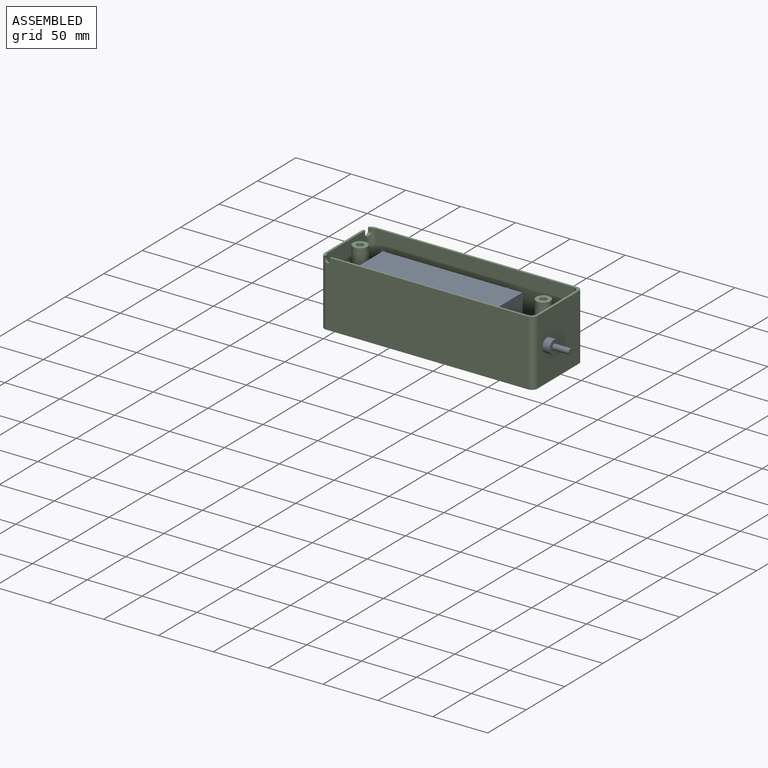
[diagram: assembled view]
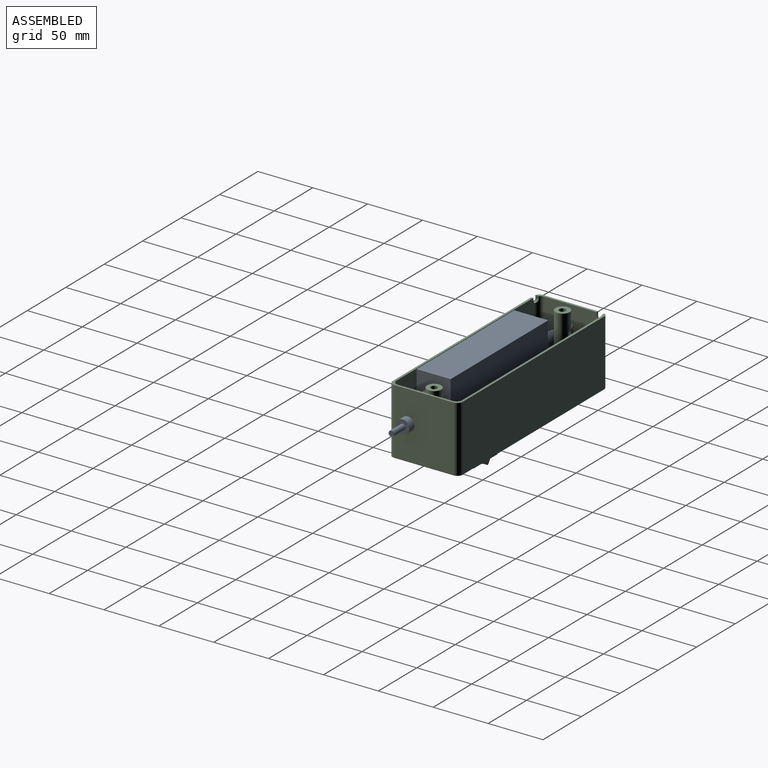
[diagram: assembled view, second angle]
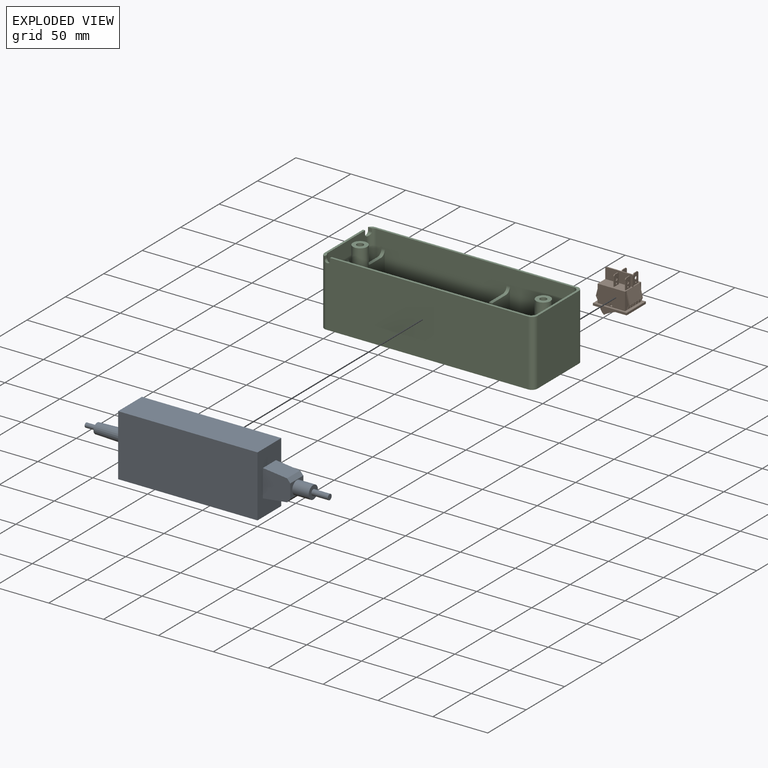
[diagram: exploded view]
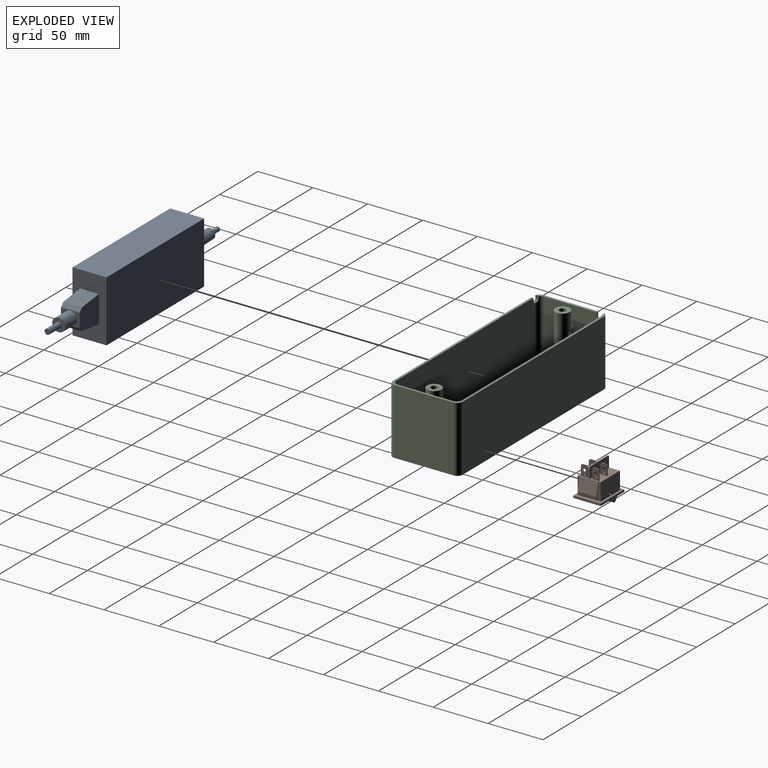
[diagram: exploded view, second angle]
ASSEMBLY  parts=3 mates=2
PART A: 21 faces, bbox 222x56x31 mm
  f0: plane 56x31mm, normal (-1,0,0), area 1311mm2, adj f1,f3,f4,f5,f6,f7,f9,f10
  f1: plane 127x31mm, normal (0,-1,0), area 3937mm2, adj f0,f2,f4,f5
  f2: plane 56x31mm, normal (1,0,0), area 1633.9mm2, adj f1,f3,f4,f5,f18
  f3: plane 127x31mm, normal (0,1,0), area 3937mm2, adj f0,f2,f4,f5
  f4: plane 127x56mm, normal (0,0,1), area 7112mm2, adj f0,f1,f2,f3
  f5: plane 127x56mm, normal (0,0,-1), area 7112mm2, adj f0,f1,f2,f3
  f6: plane 25x25mm, normal (0,0,1), area 541.1mm2, adj f0,f8,f9,f10,f11,f12
  f7: plane 25x25mm, normal (0,0,-1), area 541.1mm2, adj f0,f8,f9,f10,f11,f12
  f8: plane 17x13mm, normal (-1,0,0), area 107.9mm2, adj f6,f7,f11,f12,f13
  f9: plane 22.02x17mm, normal (-0.12,-0.99,0), area 377mm2, adj f0,f6,f7,f11
  f10: plane 22.02x17mm, normal (-0.12,0.99,0), area 377mm2, adj f0,f6,f7,f12
  f11: plane 17x3.36mm, normal (-0.75,-0.66,0), area 76.3mm2, adj f6,f7,f8,f9
  f12: plane 17x3.36mm, normal (-0.75,0.66,0), area 76.3mm2, adj f6,f7,f8,f10
  f13: cylinder r=6mm len=15mm, axis (1,0,0), area 565.5mm2, adj f8,f14
  f14: plane 12x12mm, normal (-1,0,0), area 93.5mm2, adj f13,f15
  f15: cylinder r=2.5mm len=15mm, axis (1,0,0), area 235.6mm2, adj f14,f16
  f16: plane 5x5mm, normal (-1,0,0), area 19.6mm2, adj f15
  f17: plane 9.4x9.4mm, normal (1,0,0), area 56.8mm2, adj f18,f19
  f18: cone r=4.7mm half-angle=1.9deg, axis (-1,0,0), area 980.7mm2, adj f2,f17
  f19: cylinder r=2mm len=10mm, axis (-1,0,0), area 125.7mm2, adj f17,f20
  f20: plane 4x4mm, normal (1,0,0), area 12.6mm2, adj f19
PART B: 252 faces, bbox 25x35x31 mm
  f0: plane 25x16mm, normal (1,0,0), area 390.9mm2, adj f20,f22,f23,f25,f94,f157,f158,f159
  f1: plane 15.05x3mm, normal (-1,0,0), area 13.3mm2, adj f3,f4,f5,f6,f7,f8,f9,f10
  f2: plane 15.05x3mm, normal (1,0,0), area 13.3mm2, adj f3,f4,f5,f6,f7,f8,f9,f10
  f3: plane 17x0.18mm, normal (0,0.43,-0.9), area 3.4mm2, adj f1,f2,f153,f154
  f4: plane 17x0.18mm, normal (0,0.43,-0.9), area 3.4mm2, adj f1,f2,f55,f156
  f5: plane 17x0.18mm, normal (0,0.43,-0.9), area 3.4mm2, adj f1,f2,f150,f151
  f6: plane 17x0.18mm, normal (0,0.43,-0.9), area 3.4mm2, adj f1,f2,f147,f148
  f7: plane 17x0.18mm, normal (0,0.43,-0.9), area 3.4mm2, adj f1,f2,f144,f145
  f8: plane 17x0.18mm, normal (0,0.43,-0.9), area 3.4mm2, adj f1,f2,f141,f142
  f9: plane 17x0.18mm, normal (0,0.43,-0.9), area 3.4mm2, adj f1,f2,f138,f139
  f10: plane 17x0.18mm, normal (0,0.43,-0.9), area 3.4mm2, adj f1,f2,f135,f136
  f11: plane 17x0.81mm, normal (0,0.9,0.43), area 15.3mm2, adj f1,f2,f54,f134
  f12: plane 17x0.18mm, normal (0,0.43,0.9), area 3.4mm2, adj f46,f47,f51,f131
  f13: plane 17x0.18mm, normal (0,0.43,0.9), area 3.4mm2, adj f46,f47,f128,f133
  f14: plane 17x0.18mm, normal (0,0.43,0.9), area 3.4mm2, adj f46,f47,f125,f130
  f15: plane 17x0.18mm, normal (0,0.43,0.9), area 3.4mm2, adj f46,f47,f122,f127
  f16: plane 17x0.18mm, normal (0,0.43,0.9), area 3.4mm2, adj f46,f47,f119,f124
  f17: plane 17x0.18mm, normal (0,0.43,0.9), area 3.4mm2, adj f46,f47,f116,f121
  f18: plane 17x0.18mm, normal (0,0.43,0.9), area 3.4mm2, adj f46,f47,f114,f118
  f19: cylinder r=44.05mm len=19.7mm, axis (-1,0,0), area 364.6mm2, adj f42,f43,f44,f45,f97,f98,f99,f100
  f20: plane 25x10mm, normal (0,-1,0), area 241.2mm2, adj f0,f22,f25,f34,f51,f55,f61,f62
  f21: plane 25x10mm, normal (0,-1,0), area 241.2mm2, adj f22,f25,f31,f33,f51,f55,f56,f57
  f22: plane 21x16mm, normal (0,0,-1), area 268.8mm2, adj f0,f1,f2,f20,f21,f23,f31,f53
  f23: plane 30.7x25mm, normal (0,-1,0), area 242.5mm2, adj f0,f22,f25,f27,f28,f29,f30,f31
  f24: plane 9x1mm, normal (0,0,1), area 9mm2, adj f33,f34,f51,f250
  f25: plane 21x16mm, normal (0,0,1), area 268.8mm2, adj f0,f20,f21,f23,f31,f46,f47,f50
  f26: plane 30.7x25mm, normal (0,1,0), area 298.2mm2, adj f27,f28,f29,f30,f36,f37,f38,f39
  f27: plane 30.7x2mm, normal (-1,0,0), area 61.4mm2, adj f23,f26,f28,f30
  f28: plane 25x2mm, normal (0,0,1), area 50mm2, adj f23,f26,f27,f29
  f29: plane 30.7x2mm, normal (1,0,0), area 61.4mm2, adj f23,f26,f28,f30
  f30: plane 25x2mm, normal (0,0,-1), area 50mm2, adj f23,f26,f27,f29
  f31: plane 25x16mm, normal (-1,0,0), area 396.9mm2, adj f21,f22,f23,f25,f92
  f32: plane 9x1mm, normal (0,0,-1), area 9mm2, adj f33,f34,f55,f251
  f33: plane 25x10mm, normal (-1,0,0), area 249.6mm2, adj f21,f24,f32,f35,f250,f251
  f34: plane 25x10mm, normal (1,0,0), area 249.6mm2, adj f20,f24,f32,f35,f250,f251
  f35: plane 23x1mm, normal (0,-1,0), area 23mm2, adj f33,f34,f250,f251
  f36: plane 24.7x0.5mm, normal (1,0,0), area 12.3mm2, adj f26,f37,f39,f40
  f37: plane 19x0.5mm, normal (0,0,1), area 9.5mm2, adj f26,f36,f38,f40
  f38: plane 24.7x0.5mm, normal (-1,0,0), area 12.3mm2, adj f26,f37,f39,f40
  f39: plane 19x0.5mm, normal (0,0,-1), area 9.5mm2, adj f26,f36,f38,f40
  f40: plane 24.7x19mm, normal (0,1,0), area 42.7mm2, adj f36,f37,f38,f39,f41,f42,f44,f45
  f41: plane 18x0.5mm, normal (0,0,-1), area 9mm2, adj f40,f43,f44,f45
  f42: plane 18x0.5mm, normal (0,0,1), area 9mm2, adj f19,f40,f44,f45
  f43: cylinder r=11.03mm len=18mm, axis (-1,0,0), area 148.6mm2, adj f19,f41,f44,f45
  f44: plane 23.7x7.5mm, normal (1,0,0), area 81.3mm2, adj f19,f40,f41,f42,f43
  f45: plane 23.7x7.5mm, normal (-1,0,0), area 81.3mm2, adj f19,f40,f41,f42,f43
  f46: plane 15.05x3mm, normal (-1,0,0), area 13.3mm2, adj f12,f13,f14,f15,f16,f17,f18,f25
  f47: plane 15.05x3mm, normal (1,0,0), area 13.3mm2, adj f12,f13,f14,f15,f16,f17,f18,f25
  f48: plane 17x0.81mm, normal (0,0.9,-0.43), area 15.3mm2, adj f46,f47,f49,f111
  f49: plane 17x3.29mm, normal (0,-0.43,-0.9), area 61.8mm2, adj f46,f47,f48,f50
  f50: plane 17x7.42mm, normal (0,0.25,-0.97), area 130.5mm2, adj f25,f46,f47,f49
  f51: plane 17x11.48mm, normal (0,-0.25,0.97), area 201.7mm2, adj f12,f20,f21,f24,f46,f47
  f52: plane 17x0.18mm, normal (0,0.43,0.9), area 3.4mm2, adj f46,f47,f112,f115
  f53: plane 17x7.42mm, normal (0,0.25,0.97), area 130.5mm2, adj f1,f2,f22,f54
  f54: plane 17x3.29mm, normal (0,-0.43,0.9), area 61.8mm2, adj f1,f2,f11,f53
  f55: plane 17x11.48mm, normal (0,-0.25,-0.97), area 201.7mm2, adj f1,f2,f4,f20,f21,f32
  f56: plane 8.8x0.7mm, normal (-1,0,0), area 6.2mm2, adj f21,f57,f59,f77
  f57: plane 9.8x6.3mm, normal (0,0,-1), area 52.6mm2, adj f21,f56,f58,f60,f76,f77,f85,f87
  f58: plane 8.8x0.7mm, normal (1,0,0), area 6.2mm2, adj f21,f57,f59,f76
  f59: plane 9.8x6.3mm, normal (0,0,1), area 52.6mm2, adj f21,f56,f58,f60,f76,f77,f85,f87
  f60: plane 4.3x0.7mm, normal (0,-1,0), area 3mm2, adj f57,f59,f76,f77
  f61: plane 9.8x6.3mm, normal (0,0,1), area 52.6mm2, adj f20,f62,f64,f65,f82,f83,f89,f91
  f62: plane 8.8x0.7mm, normal (-1,0,0), area 6.2mm2, adj f20,f61,f63,f83
  f63: plane 9.8x6.3mm, normal (0,0,-1), area 52.6mm2, adj f20,f62,f64,f65,f82,f83,f89,f91
  f64: plane 8.8x0.7mm, normal (1,0,0), area 6.2mm2, adj f20,f61,f63,f82
  f65: plane 4.3x0.7mm, normal (0,-1,0), area 3mm2, adj f61,f63,f82,f83
  f66: plane 8.8x0.7mm, normal (-1,0,0), area 6.2mm2, adj f21,f67,f69,f78
  f67: plane 9.8x6.3mm, normal (0,0,-1), area 52.6mm2, adj f21,f66,f68,f70,f78,f79,f84,f86
  f68: plane 8.8x0.7mm, normal (1,0,0), area 6.2mm2, adj f21,f67,f69,f79
  f69: plane 9.8x6.3mm, normal (0,0,1), area 52.6mm2, adj f21,f66,f68,f70,f78,f79,f84,f86
  f70: plane 4.3x0.7mm, normal (0,-1,0), area 3mm2, adj f67,f69,f78,f79
  f71: plane 9.8x6.3mm, normal (0,0,1), area 52.6mm2, adj f20,f72,f74,f75,f80,f81,f88,f90
  f72: plane 8.8x0.7mm, normal (-1,0,0), area 6.2mm2, adj f20,f71,f73,f81
  f73: plane 9.8x6.3mm, normal (0,0,-1), area 52.6mm2, adj f20,f72,f74,f75,f80,f81,f88,f90
  f74: plane 8.8x0.7mm, normal (1,0,0), area 6.2mm2, adj f20,f71,f73,f80
  f75: plane 4.3x0.7mm, normal (0,-1,0), area 3mm2, adj f71,f73,f80,f81
  f76: plane 1x1mm, normal (0.71,-0.71,0), area 1mm2, adj f57,f58,f59,f60
  f77: plane 1x1mm, normal (-0.71,-0.71,0), area 1mm2, adj f56,f57,f59,f60
  f78: plane 1x1mm, normal (-0.71,-0.71,0), area 1mm2, adj f66,f67,f69,f70
  f79: plane 1x1mm, normal (0.71,-0.71,0), area 1mm2, adj f67,f68,f69,f70
  f80: plane 1x1mm, normal (0.71,-0.71,0), area 1mm2, adj f71,f73,f74,f75
  f81: plane 1x1mm, normal (-0.71,-0.71,0), area 1mm2, adj f71,f72,f73,f75
  f82: plane 1x1mm, normal (0.71,-0.71,0), area 1mm2, adj f61,f63,f64,f65
  f83: plane 1x1mm, normal (-0.71,-0.71,0), area 1mm2, adj f61,f62,f63,f65
  f84: cylinder r=0.8mm len=1.6mm, axis (0,0,1), area 3.5mm2, adj f67,f69
  f85: cylinder r=0.8mm len=1.6mm, axis (0,0,1), area 3.5mm2, adj f57,f59
  f86: cylinder r=1.4mm len=2.8mm, axis (0,0,1), area 6.2mm2, adj f67,f69
  f87: cylinder r=1.4mm len=2.8mm, axis (0,0,1), area 6.2mm2, adj f57,f59
  f88: cylinder r=1.4mm len=2.8mm, axis (0,0,1), area 6.2mm2, adj f71,f73
  f89: cylinder r=1.4mm len=2.8mm, axis (0,0,1), area 6.2mm2, adj f61,f63
  f90: cylinder r=0.8mm len=1.6mm, axis (0,0,1), area 3.5mm2, adj f71,f73
  f91: cylinder r=0.8mm len=1.6mm, axis (0,0,1), area 3.5mm2, adj f61,f63
  f92: cylinder r=1mm len=2mm, axis (-1,0,0), area 9.4mm2, adj f31,f93
  f93: plane 2x2mm, normal (-1,0,0), area 3.1mm2, adj f92
  f94: cylinder r=1mm len=2mm, axis (1,0,0), area 9.4mm2, adj f0,f95
  f95: plane 2x2mm, normal (1,0,0), area 3.1mm2, adj f94
  f96: cylinder r=44.05mm len=4mm, axis (-1,0,0), area 2.6mm2, adj f97,f98,f99,f100
  f97: plane 4x2.3mm, normal (1,0,0), area 0.2mm2, adj f19,f96,f98,f100
  f98: plane 0.56x0.05mm, normal (0,0,1), area 0mm2, adj f19,f96,f97,f99
  f99: plane 4x2.3mm, normal (-1,0,0), area 0.2mm2, adj f19,f96,f98,f100
  f100: plane 0.56x0.05mm, normal (0,0,-1), area 0mm2, adj f19,f96,f97,f99
  f101: cylinder r=44.05mm len=4.1mm, axis (-1,0,0), area 5.7mm2, adj f102,f103,f104,f105,f106,f107,f108,f109
  f102: extruded ~2x1.9mm, area 0.2mm2, adj f19,f101,f103,f105
  f103: extruded ~2.1x1.9mm, area 0.2mm2, adj f19,f101,f102,f104
  f104: extruded ~2.06x1.9mm, area 0.2mm2, adj f19,f101,f103,f105
  f105: extruded ~2.05x1.9mm, area 0.2mm2, adj f19,f101,f102,f104
  f106: extruded ~1.53x1.33mm, area 0.1mm2, adj f101,f107,f109,f110
  f107: extruded ~1.59x1.34mm, area 0.1mm2, adj f101,f106,f108,f110
  f108: extruded ~1.59x1.33mm, area 0.1mm2, adj f101,f107,f109,f110
  f109: extruded ~1.65x1.34mm, area 0.1mm2, adj f101,f106,f108,f110
  f110: cylinder r=44.05mm len=3.18mm, axis (-1,0,0), area 7mm2, adj f106,f107,f108,f109
  f111: plane 17x0.27mm, normal (0,0.43,0.9), area 5.1mm2, adj f46,f47,f48,f112
  f112: plane 17x0.09mm, normal (0,0.9,-0.43), area 1.7mm2, adj f46,f47,f52,f111
  f113: plane 17x0.27mm, normal (0,0.43,0.9), area 5.1mm2, adj f46,f47,f114,f115
  f114: plane 17x0.09mm, normal (0,0.9,-0.43), area 1.7mm2, adj f18,f46,f47,f113
  f115: plane 17x0.09mm, normal (0,-0.9,0.43), area 1.7mm2, adj f46,f47,f52,f113
  f116: plane 17x0.09mm, normal (0,0.9,-0.43), area 1.7mm2, adj f17,f46,f47,f117
  f117: plane 17x0.27mm, normal (0,0.43,0.9), area 5.1mm2, adj f46,f47,f116,f118
  f118: plane 17x0.09mm, normal (0,-0.9,0.43), area 1.7mm2, adj f18,f46,f47,f117
  f119: plane 17x0.09mm, normal (0,0.9,-0.43), area 1.7mm2, adj f16,f46,f47,f120
  f120: plane 17x0.27mm, normal (0,0.43,0.9), area 5.1mm2, adj f46,f47,f119,f121
  f121: plane 17x0.09mm, normal (0,-0.9,0.43), area 1.7mm2, adj f17,f46,f47,f120
  f122: plane 17x0.09mm, normal (0,0.9,-0.43), area 1.7mm2, adj f15,f46,f47,f123
  f123: plane 17x0.27mm, normal (0,0.43,0.9), area 5.1mm2, adj f46,f47,f122,f124
  f124: plane 17x0.09mm, normal (0,-0.9,0.43), area 1.7mm2, adj f16,f46,f47,f123
  f125: plane 17x0.09mm, normal (0,0.9,-0.43), area 1.7mm2, adj f14,f46,f47,f126
  f126: plane 17x0.27mm, normal (0,0.43,0.9), area 5.1mm2, adj f46,f47,f125,f127
  f127: plane 17x0.09mm, normal (0,-0.9,0.43), area 1.7mm2, adj f15,f46,f47,f126
  f128: plane 17x0.09mm, normal (0,0.9,-0.43), area 1.7mm2, adj f13,f46,f47,f129
  f129: plane 17x0.27mm, normal (0,0.43,0.9), area 5.1mm2, adj f46,f47,f128,f130
  f130: plane 17x0.09mm, normal (0,-0.9,0.43), area 1.7mm2, adj f14,f46,f47,f129
  f131: plane 17x0.09mm, normal (0,0.9,-0.43), area 1.7mm2, adj f12,f46,f47,f132
  f132: plane 17x0.27mm, normal (0,0.43,0.9), area 5.1mm2, adj f46,f47,f131,f133
  f133: plane 17x0.09mm, normal (0,-0.9,0.43), area 1.7mm2, adj f13,f46,f47,f132
  f134: plane 17x0.27mm, normal (0,0.43,-0.9), area 5.1mm2, adj f1,f2,f11,f135
  f135: plane 17x0.09mm, normal (0,0.9,0.43), area 1.7mm2, adj f1,f2,f10,f134
  f136: plane 17x0.09mm, normal (0,-0.9,-0.43), area 1.7mm2, adj f1,f2,f10,f137
  f137: plane 17x0.27mm, normal (0,0.43,-0.9), area 5.1mm2, adj f1,f2,f136,f138
  f138: plane 17x0.09mm, normal (0,0.9,0.43), area 1.7mm2, adj f1,f2,f9,f137
  f139: plane 17x0.09mm, normal (0,-0.9,-0.43), area 1.7mm2, adj f1,f2,f9,f140
  f140: plane 17x0.27mm, normal (0,0.43,-0.9), area 5.1mm2, adj f1,f2,f139,f141
  f141: plane 17x0.09mm, normal (0,0.9,0.43), area 1.7mm2, adj f1,f2,f8,f140
  f142: plane 17x0.09mm, normal (0,-0.9,-0.43), area 1.7mm2, adj f1,f2,f8,f143
  f143: plane 17x0.27mm, normal (0,0.43,-0.9), area 5.1mm2, adj f1,f2,f142,f144
  f144: plane 17x0.09mm, normal (0,0.9,0.43), area 1.7mm2, adj f1,f2,f7,f143
  f145: plane 17x0.09mm, normal (0,-0.9,-0.43), area 1.7mm2, adj f1,f2,f7,f146
  f146: plane 17x0.27mm, normal (0,0.43,-0.9), area 5.1mm2, adj f1,f2,f145,f147
  f147: plane 17x0.09mm, normal (0,0.9,0.43), area 1.7mm2, adj f1,f2,f6,f146
  f148: plane 17x0.09mm, normal (0,-0.9,-0.43), area 1.7mm2, adj f1,f2,f6,f149
  f149: plane 17x0.27mm, normal (0,0.43,-0.9), area 5.1mm2, adj f1,f2,f148,f150
  f150: plane 17x0.09mm, normal (0,0.9,0.43), area 1.7mm2, adj f1,f2,f5,f149
  f151: plane 17x0.09mm, normal (0,-0.9,-0.43), area 1.7mm2, adj f1,f2,f5,f152
  f152: plane 17x0.27mm, normal (0,0.43,-0.9), area 5.1mm2, adj f1,f2,f151,f153
  f153: plane 17x0.09mm, normal (0,0.9,0.43), area 1.7mm2, adj f1,f2,f3,f152
  f154: plane 17x0.09mm, normal (0,-0.9,-0.43), area 1.7mm2, adj f1,f2,f3,f155
  f155: plane 17x0.27mm, normal (0,0.43,-0.9), area 5.1mm2, adj f1,f2,f154,f156
  f156: plane 17x0.09mm, normal (0,0.9,0.43), area 1.7mm2, adj f1,f2,f4,f155
  f157: plane 0.21x0.01mm, normal (0,1,0), area 0mm2, adj f0,f158,f168,f169
  f158: plane 1.5x0.01mm, normal (0,0,-1), area 0mm2, adj f0,f157,f159,f169
  f159: plane 0.21x0.01mm, normal (0,-1,0), area 0mm2, adj f0,f158,f160,f169
  f160: plane 0.69x0.01mm, normal (0,0,1), area 0mm2, adj f0,f159,f161,f169
  f161: plane 0.69x0.69mm, normal (0,-0.71,-0.71), area 0mm2, adj f0,f160,f162,f169
  f162: plane 0.29x0.01mm, normal (0,-1,0), area 0mm2, adj f0,f161,f163,f169
  f163: plane 0.63x0.63mm, normal (0,0.71,0.71), area 0mm2, adj f0,f162,f164,f169
  f164: plane 0.87x0.67mm, normal (0,-0.61,0.8), area 0mm2, adj f0,f163,f165,f169
  f165: plane 0.26x0.01mm, normal (0,1,0), area 0mm2, adj f0,f164,f166,f169
  f166: plane 0.74x0.54mm, normal (0,0.59,-0.81), area 0mm2, adj f0,f165,f167,f169
  f167: plane 0.22x0.22mm, normal (0,0.71,0.71), area 0mm2, adj f0,f166,f168,f169
  f168: plane 0.52x0.01mm, normal (0,0,1), area 0mm2, adj f0,f157,f167,f169
  f169: plane 1.5x1.23mm, normal (1,0,0), area 0.8mm2, adj f157,f158,f159,f160,f161,f162,f163,f164
  f170: extruded ~0.42x0.38mm, area 0mm2, adj f0,f171,f179,f180
  f171: plane 0.21x0.05mm, normal (0,-0.97,0.23), area 0mm2, adj f0,f170,f172,f180
  f172: extruded ~0.61x0.5mm, area 0mm2, adj f0,f171,f173,f180
  f173: extruded ~0.78x0.7mm, area 0mm2, adj f0,f172,f174,f180
  f174: extruded ~0.76x0.69mm, area 0mm2, adj f0,f173,f175,f180
  f175: extruded ~0.58x0.44mm, area 0mm2, adj f0,f174,f176,f180
  f176: plane 0.21x0.05mm, normal (0,0.98,0.21), area 0mm2, adj f0,f175,f177,f180
  f177: extruded ~0.38x0.31mm, area 0mm2, adj f0,f176,f178,f180
  f178: extruded ~0.58x0.47mm, area 0mm2, adj f0,f177,f179,f180
  f179: extruded ~0.61x0.46mm, area 0mm2, adj f0,f170,f178,f180
  f180: plane 1.54x1.31mm, normal (1,0,0), area 0.7mm2, adj f170,f171,f172,f173,f174,f175,f176,f177
  f181: plane 0.54x0.01mm, normal (0,1,0), area 0mm2, adj f0,f182,f187,f188
  f182: plane 1.5x0.01mm, normal (0,0,-1), area 0mm2, adj f0,f181,f183,f188
  f183: plane 0.51x0.01mm, normal (0,-1,0), area 0mm2, adj f0,f182,f184,f188
  f184: cylinder r=1.19mm len=0.27mm, axis (-1,0,0), area 0mm2, adj f0,f183,f185,f188
  f185: cylinder r=0.51mm len=0.22mm, axis (-1,0,0), area 0mm2, adj f0,f184,f186,f188
  f186: extruded ~0.61x0.23mm, area 0mm2, adj f0,f185,f187,f188
  f187: extruded ~0.76x0.69mm, area 0mm2, adj f0,f181,f186,f188
  f188: plane 1.5x1.23mm, normal (1,0,0), area 0.8mm2, adj f181,f182,f183,f184,f185,f186,f187,f189
  f189: plane 1.15x0.01mm, normal (0,0,1), area 0mm2, adj f188,f190,f195,f196
  f190: plane 0.3x0.01mm, normal (0,1,0), area 0mm2, adj f188,f189,f191,f196
  f191: extruded ~0.25x0.03mm, area 0mm2, adj f188,f190,f192,f196
  f192: extruded ~0.53x0.26mm, area 0mm2, adj f188,f191,f193,f196
  f193: extruded ~0.48x0.14mm, area 0mm2, adj f188,f192,f194,f196
  f194: extruded ~0.35x0.11mm, area 0mm2, adj f188,f193,f195,f196
  f195: plane 0.31x0.01mm, normal (0,-1,0), area 0mm2, adj f188,f189,f194,f196
  f196: plane 1.15x0.81mm, normal (1,0,0), area 0.8mm2, adj f189,f190,f191,f192,f193,f194,f195
  f197: plane 0.73x0.01mm, normal (0,-1,0), area 0mm2, adj f0,f198,f209,f210
  f198: plane 0.19x0.01mm, normal (0,0,1), area 0mm2, adj f0,f197,f199,f210
  f199: plane 0.98x0.01mm, normal (0,1,0), area 0mm2, adj f0,f198,f200,f210
  f200: cylinder r=0.38mm len=0.13mm, axis (-1,0,0), area 0mm2, adj f0,f199,f201,f210
  f201: extruded ~0.43x0.35mm, area 0mm2, adj f0,f200,f202,f210
  f202: extruded ~0.52x0.4mm, area 0mm2, adj f0,f201,f203,f210
  f203: extruded ~0.27x0.24mm, area 0mm2, adj f0,f202,f204,f210
  f204: extruded ~0.28x0.27mm, area 0mm2, adj f0,f203,f205,f210
  f205: plane 0.19x0.02mm, normal (0,1,-0.1), area 0mm2, adj f0,f204,f206,f210
  f206: extruded ~0.48x0.42mm, area 0mm2, adj f0,f205,f207,f210
  f207: extruded ~0.46x0.41mm, area 0mm2, adj f0,f206,f208,f210
  f208: extruded ~0.62x0.42mm, area 0mm2, adj f0,f207,f209,f210
  f209: extruded ~0.3x0.28mm, area 0mm2, adj f0,f197,f208,f210
  f210: plane 1.5x0.98mm, normal (1,0,0), area 0.6mm2, adj f197,f198,f199,f200,f201,f202,f203,f204
  f211: plane 0.56x0.01mm, normal (0,1,0), area 0mm2, adj f0,f212,f214,f215
  f212: plane 0.17x0.01mm, normal (0,0,-1), area 0mm2, adj f0,f211,f213,f215
  f213: plane 0.56x0.01mm, normal (0,-1,0), area 0mm2, adj f0,f212,f214,f215
  f214: plane 0.17x0.01mm, normal (0,0,1), area 0mm2, adj f0,f211,f213,f215
  f215: plane 0.56x0.17mm, normal (1,0,0), area 0.1mm2, adj f211,f212,f213,f214
  f216: plane 0.73x0.01mm, normal (0,-1,0), area 0mm2, adj f0,f217,f228,f229
  f217: plane 0.19x0.01mm, normal (0,0,1), area 0mm2, adj f0,f216,f218,f229
  f218: plane 0.98x0.01mm, normal (0,1,0), area 0mm2, adj f0,f217,f219,f229
  f219: cylinder r=0.38mm len=0.13mm, axis (-1,0,0), area 0mm2, adj f0,f218,f220,f229
  f220: extruded ~0.43x0.35mm, area 0mm2, adj f0,f219,f221,f229
  f221: extruded ~0.52x0.4mm, area 0mm2, adj f0,f220,f222,f229
  f222: extruded ~0.27x0.24mm, area 0mm2, adj f0,f221,f223,f229
  f223: extruded ~0.28x0.27mm, area 0mm2, adj f0,f222,f224,f229
  f224: plane 0.19x0.02mm, normal (0,1,-0.1), area 0mm2, adj f0,f223,f225,f229
  f225: extruded ~0.48x0.42mm, area 0mm2, adj f0,f224,f226,f229
  f226: extruded ~0.46x0.41mm, area 0mm2, adj f0,f225,f227,f229
  f227: extruded ~0.62x0.42mm, area 0mm2, adj f0,f226,f228,f229
  f228: extruded ~0.3x0.28mm, area 0mm2, adj f0,f216,f227,f229
  f229: plane 1.5x0.98mm, normal (1,0,0), area 0.6mm2, adj f216,f217,f218,f219,f220,f221,f222,f223
  f230: extruded ~0.61x0.15mm, area 0mm2, adj f0,f231,f234,f235
  f231: extruded ~0.76x0.48mm, area 0mm2, adj f0,f230,f232,f235
  f232: extruded ~0.76x0.48mm, area 0mm2, adj f0,f231,f233,f235
  f233: extruded ~0.76x0.48mm, area 0mm2, adj f0,f232,f234,f235
  f234: extruded ~0.34x0.14mm, area 0mm2, adj f0,f230,f233,f235
  f235: plane 1.52x0.96mm, normal (1,0,0), area 0.6mm2, adj f230,f231,f232,f233,f234,f236,f237,f238
  f236: extruded ~0.48x0.09mm, area 0mm2, adj f235,f237,f240,f241
  f237: cylinder r=0.24mm len=0.2mm, axis (1,0,0), area 0mm2, adj f235,f236,f238,f241
  f238: extruded ~0.59x0.29mm, area 0mm2, adj f235,f237,f239,f241
  f239: extruded ~0.59x0.29mm, area 0mm2, adj f235,f238,f240,f241
  f240: extruded ~0.59x0.29mm, area 0mm2, adj f235,f236,f239,f241
  f241: plane 1.17x0.58mm, normal (1,0,0), area 0.6mm2, adj f236,f237,f238,f239,f240
  f242: plane 1.5x0.01mm, normal (0,0,1), area 0mm2, adj f0,f243,f248,f249
  f243: plane 0.19x0.01mm, normal (0,1,0), area 0mm2, adj f0,f242,f244,f249
  f244: plane 1.17x0.01mm, normal (0,0,-1), area 0mm2, adj f0,f243,f245,f249
  f245: extruded ~0.35x0.22mm, area 0mm2, adj f0,f244,f246,f249
  f246: plane 0.18x0.01mm, normal (0,0,-1), area 0mm2, adj f0,f245,f247,f249
  f247: extruded ~0.41x0.38mm, area 0mm2, adj f0,f246,f248,f249
  f248: plane 0.12x0.01mm, normal (0,-1,0), area 0mm2, adj f0,f242,f247,f249
  f249: plane 1.5x0.54mm, normal (1,0,0), area 0.4mm2, adj f242,f243,f244,f245,f246,f247,f248
  f250: cylinder r=1mm len=1mm, axis (1,0,0), area 1.6mm2, adj f24,f33,f34,f35
  f251: cylinder r=1mm len=1mm, axis (-1,0,0), area 1.6mm2, adj f32,f33,f34,f35
PART C: 69 faces, bbox 194x64x60 mm
  f0: plane 1.5x0.18mm, normal (0,0,1), area 0.1mm2, adj f2,f50,f58
  f1: plane 1.5x0.18mm, normal (0,0,1), area 0.1mm2, adj f29,f46,f55
  f2: cylinder r=6.5mm len=57mm, axis (0,0,-1), area 2006mm2, adj f0,f6,f28,f40,f41,f49,f50,f51
  f3: plane 190x60mm, normal (0,0,1), area 9499.2mm2, adj f4,f9,f13,f14,f17,f18,f19,f20
  f4: plane 57x50mm, normal (1,0,0), area 2713.9mm2, adj f3,f6,f12,f21,f23,f49,f50,f58
  f5: plane 28.5x10mm, normal (0,0,1), area 263.5mm2, adj f13,f14,f29,f43,f47,f61
  f6: plane 28.5x10mm, normal (0,0,1), area 263.5mm2, adj f2,f4,f13,f41,f50,f64
  f7: plane 194x64mm, normal (0,0,-1), area 11566.5mm2, adj f10,f11,f15,f16,f17,f18,f19,f20
  f8: plane 193.58x64mm, normal (0,0,1), area 878.9mm2, adj f9,f10,f13,f14,f15,f16,f22,f25
  f9: plane 180x57mm, normal (0,1,0), area 10253.8mm2, adj f3,f8,f25,f26,f62,f63
  f10: plane 184x60mm, normal (0,-1,0), area 11023.9mm2, adj f7,f8,f25,f26,f65,f68
  f11: plane 60x54mm, normal (-1,0,0), area 3218mm2, adj f7,f12,f21,f23,f67,f68
  f12: plane 54.77x3.5mm, normal (0,0,1), area 111.6mm2, adj f4,f11,f23,f24,f63,f68
  f13: plane 180x57mm, normal (0,-1,0), area 9882mm2, adj f3,f5,f6,f8,f36,f37,f40,f41
  f14: plane 57x50mm, normal (-1,0,0), area 2724mm2, adj f3,f5,f8,f46,f47,f55,f61,f62
  f15: plane 60x54mm, normal (1,0,0), area 3240mm2, adj f7,f8,f65,f66
  f16: plane 184x60mm, normal (0,1,0), area 11040mm2, adj f7,f8,f66,f67
  f17: plane 22x3mm, normal (-1,0,0), area 66mm2, adj f3,f7,f18,f20
  f18: plane 29x3mm, normal (0,-1,0), area 87mm2, adj f3,f7,f17,f19
  f19: plane 22x3mm, normal (1,0,0), area 66mm2, adj f3,f7,f18,f20
  f20: plane 29x3mm, normal (0,1,0), area 87mm2, adj f3,f7,f17,f19
  f21: cylinder r=3mm len=6mm, axis (-1,0,0), area 23.3mm2, adj f4,f11,f22,f23,f64,f67
  f22: plane 3.58x3mm, normal (0,-1,0), area 10.7mm2, adj f8,f21,f64,f67
  f23: plane 3x2mm, normal (0,1,0), area 6mm2, adj f4,f11,f12,f21
  f24: plane 3.2x2.5mm, normal (1,0,0), area 8mm2, adj f12,f26,f63,f68
  f25: plane 2.5x2mm, normal (-1,0,0), area 5mm2, adj f8,f9,f10,f26
  f26: cylinder r=2.5mm len=5mm, axis (0,-1,0), area 18.6mm2, adj f9,f10,f24,f25,f63,f68
  f27: cylinder r=3mm len=25mm, axis (0,0,-1), area 471.2mm2, adj f28,f35
  f28: plane 13x13mm, normal (0,0,1), area 104.5mm2, adj f2,f27
  f29: cylinder r=6.5mm len=57mm, axis (0,0,-1), area 2006mm2, adj f1,f5,f31,f43,f44,f46,f47,f48
  f30: cylinder r=3mm len=25mm, axis (0,0,-1), area 471.2mm2, adj f31,f34
  f31: plane 13x13mm, normal (0,0,1), area 104.5mm2, adj f29,f30
  f32: cylinder r=5.5mm len=32.5mm, axis (0,0,-1), area 1123.1mm2, adj f7,f34
  f33: cylinder r=5.5mm len=32.5mm, axis (0,0,-1), area 1123.1mm2, adj f7,f35
  f34: cone r=3mm half-angle=45deg, axis (0,0,-1), area 94.4mm2, adj f30,f32
  f35: cone r=6mm half-angle=45deg, axis (0,0,-1), area 94.4mm2, adj f27,f33
  f36: plane 42x23mm, normal (1,0,0), area 856.4mm2, adj f3,f13,f38,f39,f54
  f37: plane 42x23mm, normal (-1,0,0), area 856.4mm2, adj f3,f13,f38,f39,f54
  f38: plane 37x3mm, normal (0,-1,0), area 111mm2, adj f3,f36,f37,f39
  f39: plane 18x3mm, normal (0,0,1), area 54mm2, adj f36,f37,f38,f54
  f40: plane 42x23.68mm, normal (1,0,0), area 884.9mm2, adj f2,f3,f13,f42,f52,f59,f60
  f41: plane 42x23.68mm, normal (-1,0,0), area 886.8mm2, adj f2,f6,f13,f42,f59,f60
  f42: plane 13.6x3mm, normal (0,0,1), area 40.6mm2, adj f40,f41,f59,f60
  f43: plane 42x23.68mm, normal (1,0,0), area 886.8mm2, adj f5,f13,f29,f45,f56,f57
  f44: plane 42x23.68mm, normal (-1,0,0), area 884.9mm2, adj f3,f13,f29,f45,f53,f56,f57
  f45: plane 13.6x3mm, normal (0,0,1), area 40.6mm2, adj f43,f44,f56,f57
  f46: plane 42x5.18mm, normal (0,-1,0), area 194.9mm2, adj f1,f3,f14,f29,f53,f55
  f47: plane 42x5.18mm, normal (0,1,0), area 196.9mm2, adj f5,f14,f29,f48,f55
  f48: plane 1.5x0.18mm, normal (0,0,1), area 0.1mm2, adj f29,f47,f55
  f49: plane 42x5.18mm, normal (0,-1,0), area 194.9mm2, adj f2,f3,f4,f51,f52,f58
  f50: plane 42x5.18mm, normal (0,1,0), area 196.9mm2, adj f0,f2,f4,f6,f58
  f51: plane 1.5x0.18mm, normal (0,0,1), area 0.1mm2, adj f2,f49,f58
  f52: torus R=9.5mm, axis (0,0,1), area 154.3mm2, adj f2,f3,f40,f49
  f53: torus R=9.5mm, axis (0,0,1), area 154.3mm2, adj f3,f29,f44,f46
  f54: cylinder r=5mm len=5mm, axis (1,0,0), area 23.6mm2, adj f13,f36,f37,f39
  f55: cylinder r=5mm len=5mm, axis (0,-1,0), area 23.6mm2, adj f1,f14,f46,f47,f48
  f56: cylinder r=5mm len=5mm, axis (1,0,0), area 23.6mm2, adj f13,f43,f44,f45
  f57: torus R=11.5mm, axis (0,0,1), area 23.7mm2, adj f29,f43,f44,f45
  f58: cylinder r=5mm len=5mm, axis (0,1,0), area 23.6mm2, adj f0,f4,f49,f50,f51
  f59: cylinder r=5mm len=5mm, axis (1,0,0), area 23.6mm2, adj f13,f40,f41,f42
  f60: torus R=11.5mm, axis (0,0,1), area 23.7mm2, adj f2,f40,f41,f42
  f61: cylinder r=5mm len=57mm, axis (0,0,1), area 447.7mm2, adj f5,f8,f13,f14
  f62: cylinder r=5mm len=57mm, axis (0,0,-1), area 447.7mm2, adj f3,f8,f9,f14
  f63: cylinder r=5mm len=57mm, axis (0,0,1), area 430mm2, adj f3,f4,f9,f12,f24,f26
  f64: cylinder r=5mm len=57mm, axis (0,0,-1), area 422.6mm2, adj f4,f6,f8,f13,f21,f22
  f65: cylinder r=5mm len=60mm, axis (0,0,1), area 471.2mm2, adj f7,f8,f10,f15
  f66: cylinder r=5mm len=60mm, axis (0,0,-1), area 471.2mm2, adj f7,f8,f15,f16
  f67: cylinder r=5mm len=60mm, axis (0,0,1), area 460.9mm2, adj f7,f8,f11,f16,f21,f22
  f68: cylinder r=5mm len=60mm, axis (0,0,-1), area 464.9mm2, adj f7,f10,f11,f12,f24,f26
PLACE A rot(axis=(0,-0.71,-0.71),180deg) t=(-5.24,-19.47,21.86)mm
PLACE B rot(axis=(-0.58,0.58,-0.58),120deg) t=(69.55,40.53,-9.62)mm
PLACE C t=(-5.3,10.53,-9.62)mm
MATE fastened B.f23 <-> C.f7  axis (0,0,1) through (54.2,38.53,-9.62)mm
MATE fastened A.f5 <-> C.f9  axis (0,-1,0) through (-5.24,-19.47,21.86)mm
